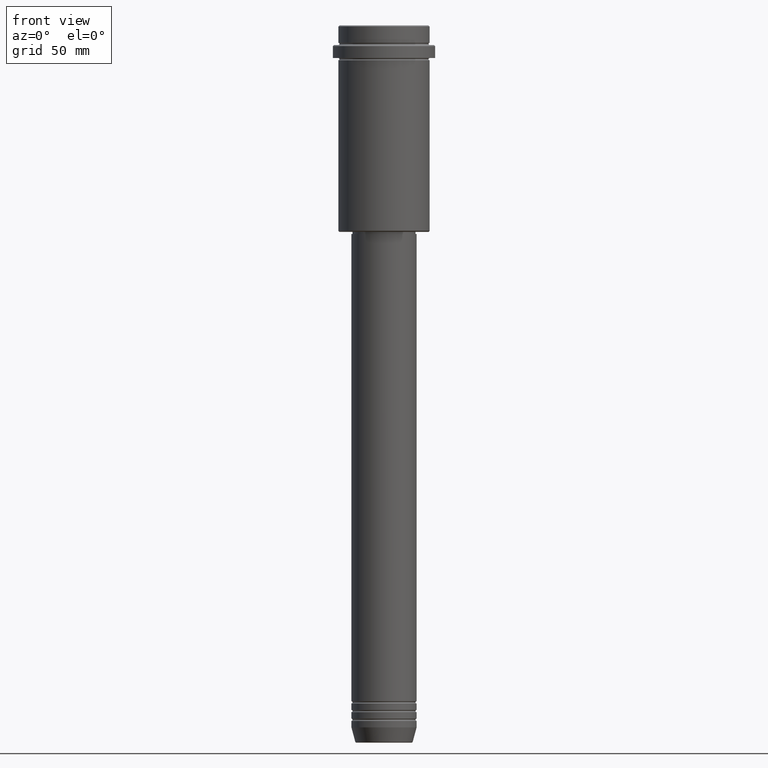
[diagram: clean part render]
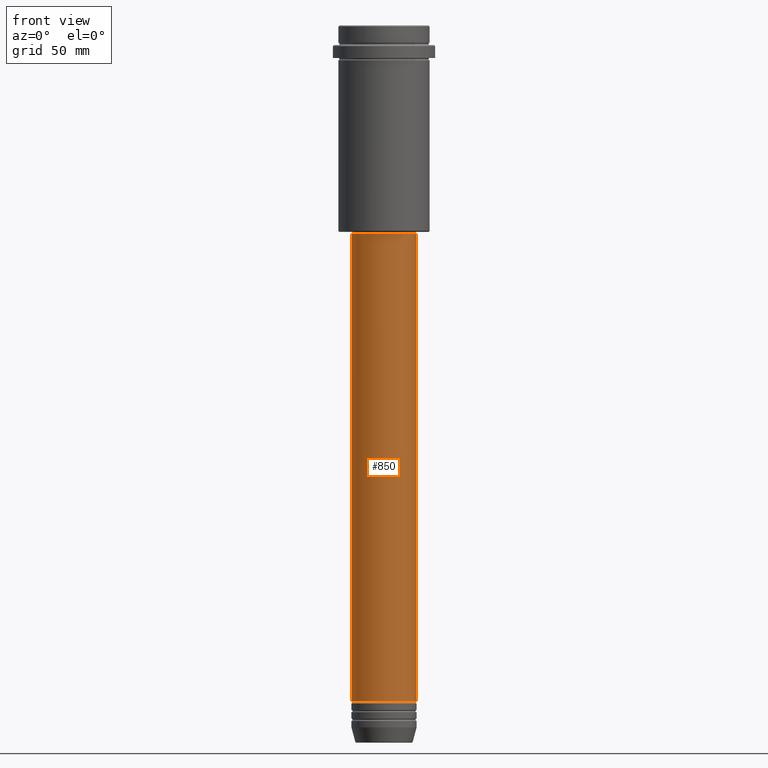
[diagram: same view with one face highlighted and labeled with its STEP entity id]
A machine part, front view. The second image highlights one B-rep face of the part: STEP entity #850.
In plain terms, the highlighted cylindrical surface (edge-blend (fillet) strip) has radius 15 mm, axis along (-0, -0, 1).
Its self-contained STEP definition (entity closure, byte-faithful):
#22 = CARTESIAN_POINT ( 'NONE',  ( 0.000000000000000000, 0.000000000000000000, -310.9999999999998863 ) ) ;
#84 = ORIENTED_EDGE ( 'NONE', *, *, #404, .T. ) ;
#144 = CARTESIAN_POINT ( 'NONE',  ( 0.000000000000000000, 0.000000000000000000, 0.000000000000000000 ) ) ;
#210 = VECTOR ( 'NONE', #1092, 1000.000000000000000 ) ;
#231 = ORIENTED_EDGE ( 'NONE', *, *, #347, .T. ) ;
#266 = CARTESIAN_POINT ( 'NONE',  ( -15.00000000000000000, 1.836970198721029589E-15, -310.9999999999998863 ) ) ;
#343 = CIRCLE ( 'NONE', #1352, 15.00000000000000000 ) ;
#344 = VERTEX_POINT ( 'NONE', #1244 ) ;
#347 = EDGE_CURVE ( 'NONE', #917, #1335, #1345, .T. ) ;
#382 = ORIENTED_EDGE ( 'NONE', *, *, #662, .F. ) ;
#404 = EDGE_CURVE ( 'NONE', #430, #917, #343, .T. ) ;
#430 = VERTEX_POINT ( 'NONE', #266 ) ;
#457 = LINE ( 'NONE', #656, #210 ) ;
#463 = AXIS2_PLACEMENT_3D ( 'NONE', #494, #1035, #1361 ) ;
#494 = CARTESIAN_POINT ( 'NONE',  ( 0.000000000000000000, 0.000000000000000000, -95.99999999999994316 ) ) ;
#551 = FACE_OUTER_BOUND ( 'NONE', #1192, .T. ) ;
#611 = CARTESIAN_POINT ( 'NONE',  ( 15.00000000000000000, 0.000000000000000000, -95.99999999999994316 ) ) ;
#656 = CARTESIAN_POINT ( 'NONE',  ( -15.00000000000000000, 1.836970198721029589E-15, 0.000000000000000000 ) ) ;
#662 = EDGE_CURVE ( 'NONE', #344, #1335, #775, .T. ) ;
#666 = ORIENTED_EDGE ( 'NONE', *, *, #1150, .F. ) ;
#677 = DIRECTION ( 'NONE',  ( -0.000000000000000000, -0.000000000000000000, 1.000000000000000000 ) ) ;
#679 = CARTESIAN_POINT ( 'NONE',  ( 15.00000000000000000, 0.000000000000000000, -310.9999999999998863 ) ) ;
#681 = CARTESIAN_POINT ( 'NONE',  ( 15.00000000000000000, 0.000000000000000000, 0.000000000000000000 ) ) ;
#698 = DIRECTION ( 'NONE',  ( 1.000000000000000000, 0.000000000000000000, 0.000000000000000000 ) ) ;
#775 = CIRCLE ( 'NONE', #463, 15.00000000000000000 ) ;
#791 = DIRECTION ( 'NONE',  ( -0.000000000000000000, -0.000000000000000000, 1.000000000000000000 ) ) ;
#794 = DIRECTION ( 'NONE',  ( 1.000000000000000000, 0.000000000000000000, 0.000000000000000000 ) ) ;
#850 = ADVANCED_FACE ( 'NONE', ( #551 ), #1191, .T. ) ;
#917 = VERTEX_POINT ( 'NONE', #679 ) ;
#1035 = DIRECTION ( 'NONE',  ( -0.000000000000000000, -0.000000000000000000, 1.000000000000000000 ) ) ;
#1092 = DIRECTION ( 'NONE',  ( -0.000000000000000000, -0.000000000000000000, 1.000000000000000000 ) ) ;
#1150 = EDGE_CURVE ( 'NONE', #430, #344, #457, .T. ) ;
#1191 = CYLINDRICAL_SURFACE ( 'NONE', #1277, 15.00000000000000000 ) ;
#1192 = EDGE_LOOP ( 'NONE', ( #666, #84, #231, #382 ) ) ;
#1235 = DIRECTION ( 'NONE',  ( -0.000000000000000000, -0.000000000000000000, 1.000000000000000000 ) ) ;
#1244 = CARTESIAN_POINT ( 'NONE',  ( -15.00000000000000000, 1.836970198721029589E-15, -95.99999999999994316 ) ) ;
#1277 = AXIS2_PLACEMENT_3D ( 'NONE', #144, #791, #698 ) ;
#1335 = VERTEX_POINT ( 'NONE', #611 ) ;
#1345 = LINE ( 'NONE', #681, #1367 ) ;
#1352 = AXIS2_PLACEMENT_3D ( 'NONE', #22, #1235, #794 ) ;
#1361 = DIRECTION ( 'NONE',  ( 1.000000000000000000, 0.000000000000000000, 0.000000000000000000 ) ) ;
#1367 = VECTOR ( 'NONE', #677, 1000.000000000000000 ) ;